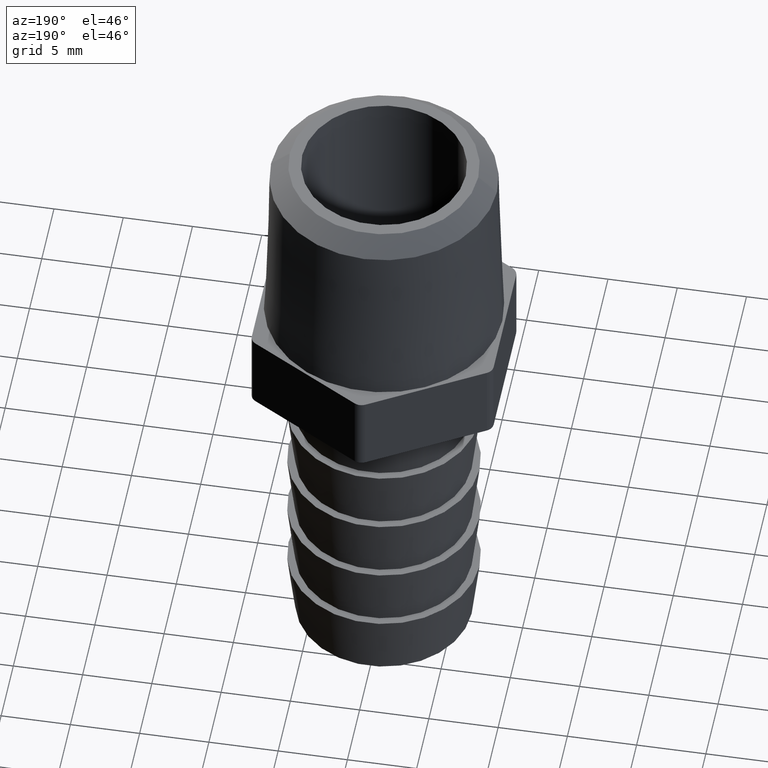
[diagram: clean part render]
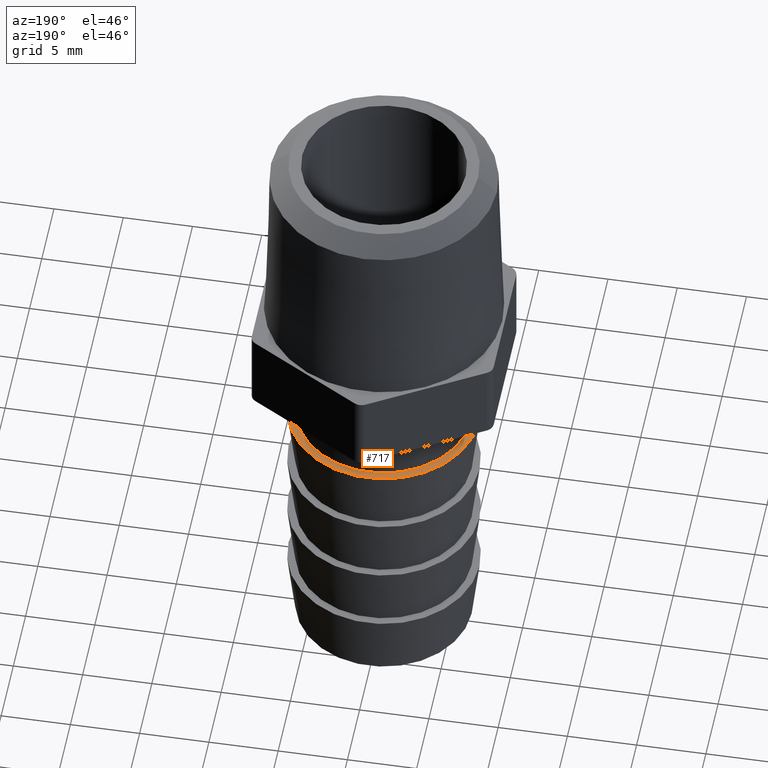
[diagram: same view with one face highlighted and labeled with its STEP entity id]
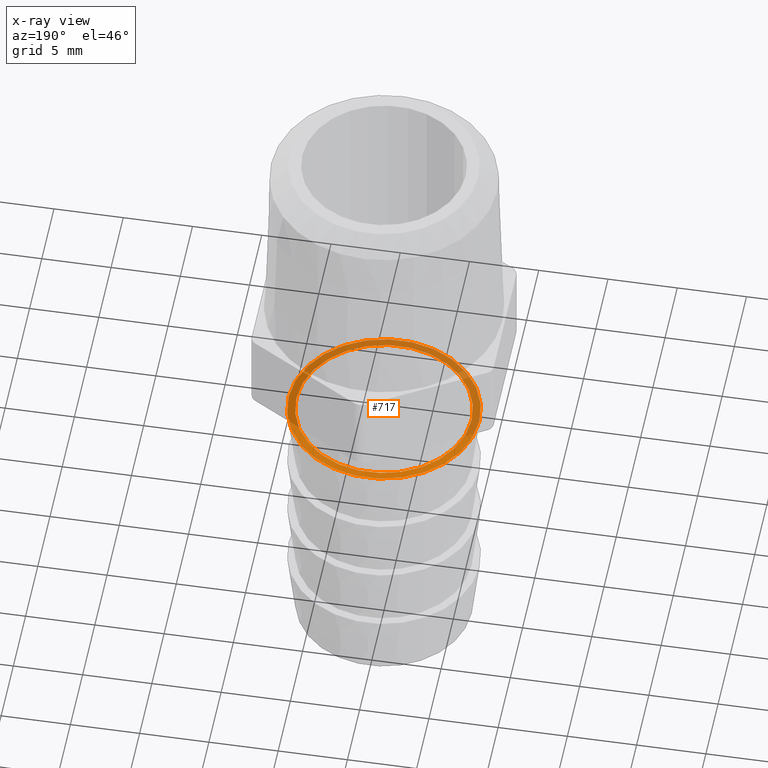
[diagram: x-ray of the same camera — body ghosted, the highlighted face saturated]
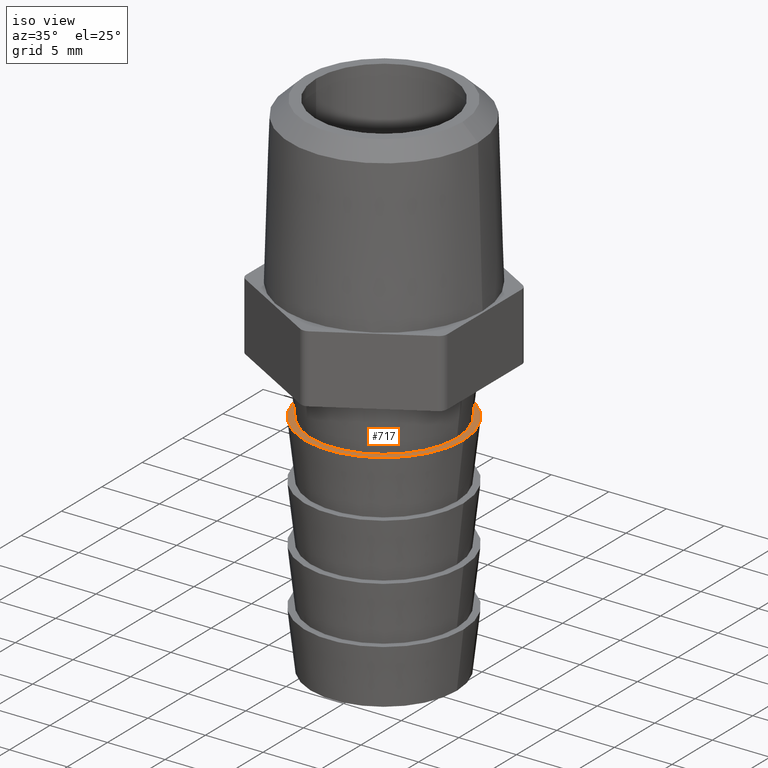
[diagram: same view with one face highlighted and labeled with its STEP entity id]
A machine part, auxiliary view. The second image highlights one B-rep face of the part: STEP entity #717.
The next image is the same camera in x-ray: the body ghosted, the highlighted face saturated — about 60% of this face is hidden behind the body in this view.
A second angle (iso view) of the same face is appended — the face is thin or edge-on in the first view.
In plain terms, the highlighted planar face has unit normal (0, -0, 1).
Its self-contained STEP definition (entity closure, byte-faithful):
#21 = CARTESIAN_POINT ( 'NONE',  ( 0.2715000000000000200, 0.0000000000000000000, -0.2999999999999999300 ) ) ;
#37 = ORIENTED_EDGE ( 'NONE', *, *, #283, .T. ) ;
#100 = CARTESIAN_POINT ( 'NONE',  ( 0.0000000000000000000, 0.0000000000000000000, -0.2999999999999999300 ) ) ;
#103 = DIRECTION ( 'NONE',  ( 1.000000000000000000, 0.0000000000000000000, 0.0000000000000000000 ) ) ;
#133 = EDGE_CURVE ( 'NONE', #148, #374, #761, .T. ) ;
#148 = VERTEX_POINT ( 'NONE', #822 ) ;
#176 = CIRCLE ( 'NONE', #306, 0.2715000000000000200 ) ;
#184 = FACE_BOUND ( 'NONE', #1087, .T. ) ;
#187 = DIRECTION ( 'NONE',  ( 1.000000000000000000, 0.0000000000000000000, 0.0000000000000000000 ) ) ;
#228 = AXIS2_PLACEMENT_3D ( 'NONE', #556, #732, #103 ) ;
#240 = VERTEX_POINT ( 'NONE', #21 ) ;
#241 = CIRCLE ( 'NONE', #663, 0.2490000000000000000 ) ;
#266 = CIRCLE ( 'NONE', #613, 0.2715000000000000200 ) ;
#283 = EDGE_CURVE ( 'NONE', #240, #1106, #266, .T. ) ;
#299 = CARTESIAN_POINT ( 'NONE',  ( 0.0000000000000000000, 0.0000000000000000000, -0.2999999999999999300 ) ) ;
#306 = AXIS2_PLACEMENT_3D ( 'NONE', #490, #1123, #588 ) ;
#353 = EDGE_CURVE ( 'NONE', #1106, #240, #176, .T. ) ;
#374 = VERTEX_POINT ( 'NONE', #943 ) ;
#389 = DIRECTION ( 'NONE',  ( 1.000000000000000000, 0.0000000000000000000, 0.0000000000000000000 ) ) ;
#406 = AXIS2_PLACEMENT_3D ( 'NONE', #100, #734, #187 ) ;
#462 = DIRECTION ( 'NONE',  ( -0.0000000000000000000, -0.0000000000000000000, 1.000000000000000000 ) ) ;
#464 = PLANE ( 'NONE',  #228 ) ;
#490 = CARTESIAN_POINT ( 'NONE',  ( 0.0000000000000000000, 0.0000000000000000000, -0.2999999999999999300 ) ) ;
#556 = CARTESIAN_POINT ( 'NONE',  ( 0.0000000000000000000, 0.2715000000000000200, -0.2999999999999999300 ) ) ;
#588 = DIRECTION ( 'NONE',  ( 1.000000000000000000, 0.0000000000000000000, 0.0000000000000000000 ) ) ;
#613 = AXIS2_PLACEMENT_3D ( 'NONE', #299, #934, #389 ) ;
#649 = FACE_OUTER_BOUND ( 'NONE', #676, .T. ) ;
#663 = AXIS2_PLACEMENT_3D ( 'NONE', #999, #462, #1088 ) ;
#676 = EDGE_LOOP ( 'NONE', ( #37, #783 ) ) ;
#685 = EDGE_CURVE ( 'NONE', #374, #148, #241, .T. ) ;
#715 = ORIENTED_EDGE ( 'NONE', *, *, #685, .F. ) ;
#717 = ADVANCED_FACE ( 'NONE', ( #649, #184 ), #464, .T. ) ;
#732 = DIRECTION ( 'NONE',  ( 0.0000000000000000000, -0.0000000000000000000, 1.000000000000000000 ) ) ;
#734 = DIRECTION ( 'NONE',  ( -0.0000000000000000000, -0.0000000000000000000, 1.000000000000000000 ) ) ;
#761 = CIRCLE ( 'NONE', #406, 0.2490000000000000000 ) ;
#783 = ORIENTED_EDGE ( 'NONE', *, *, #353, .T. ) ;
#822 = CARTESIAN_POINT ( 'NONE',  ( 0.2490000000000000000, 0.0000000000000000000, -0.2999999999999999300 ) ) ;
#885 = CARTESIAN_POINT ( 'NONE',  ( -0.2715000000000000200, 3.324916059685064000E-017, -0.2999999999999999300 ) ) ;
#934 = DIRECTION ( 'NONE',  ( -0.0000000000000000000, -0.0000000000000000000, 1.000000000000000000 ) ) ;
#943 = CARTESIAN_POINT ( 'NONE',  ( -0.2490000000000000000, 3.179371497786398200E-017, -0.2999999999999999300 ) ) ;
#999 = CARTESIAN_POINT ( 'NONE',  ( 0.0000000000000000000, 0.0000000000000000000, -0.2999999999999999300 ) ) ;
#1019 = ORIENTED_EDGE ( 'NONE', *, *, #133, .F. ) ;
#1087 = EDGE_LOOP ( 'NONE', ( #1019, #715 ) ) ;
#1088 = DIRECTION ( 'NONE',  ( 1.000000000000000000, 0.0000000000000000000, 0.0000000000000000000 ) ) ;
#1106 = VERTEX_POINT ( 'NONE', #885 ) ;
#1123 = DIRECTION ( 'NONE',  ( -0.0000000000000000000, -0.0000000000000000000, 1.000000000000000000 ) ) ;